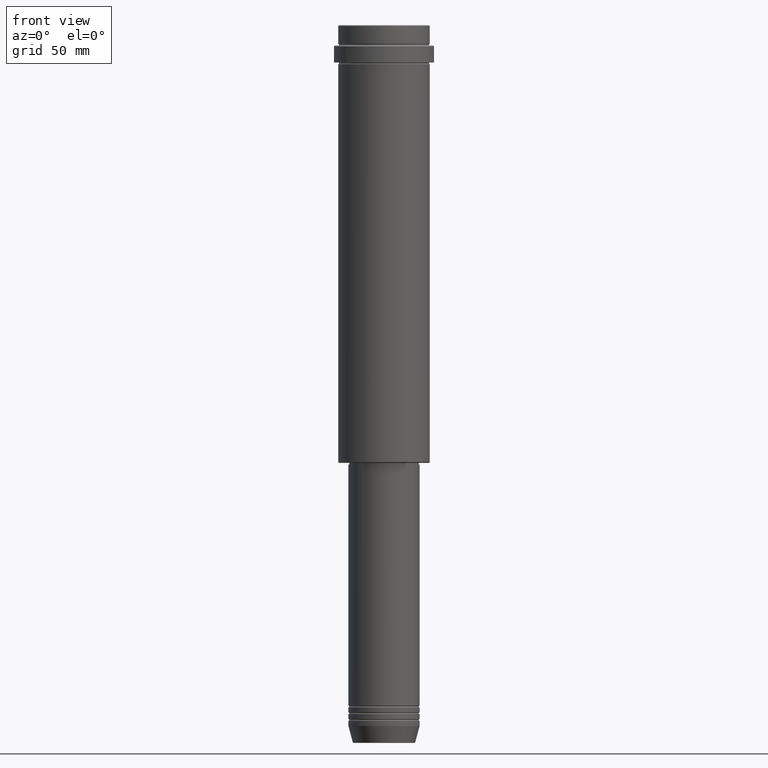
[diagram: clean part render]
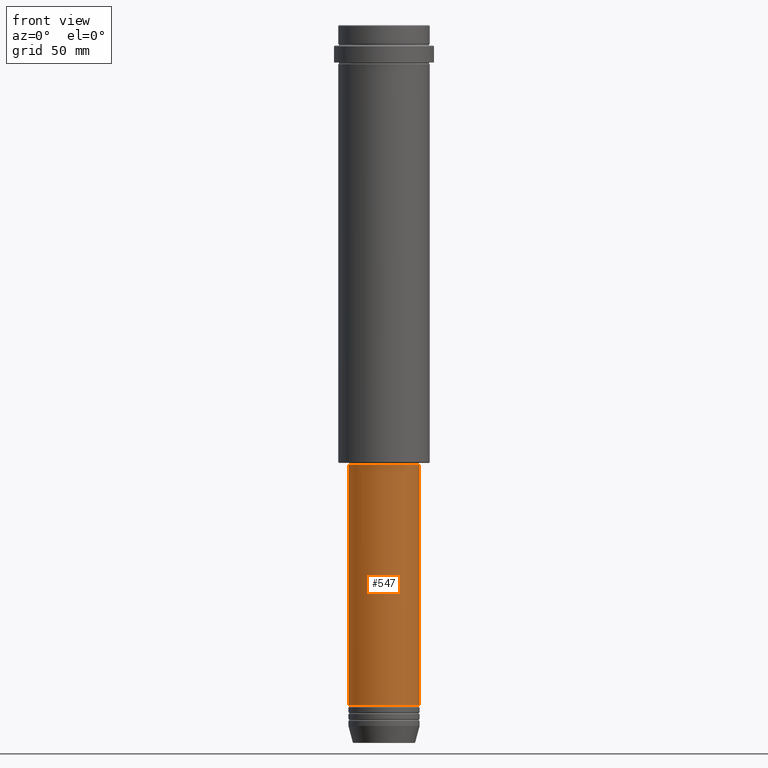
[diagram: same view with one face highlighted and labeled with its STEP entity id]
A machine part, front view. The second image highlights one B-rep face of the part: STEP entity #547.
In plain terms, the highlighted cylindrical surface (edge-blend (fillet) strip) has radius 21 mm, axis along (-0, -0, 1).
Its self-contained STEP definition (entity closure, byte-faithful):
#12 = EDGE_CURVE ( 'NONE', #1357, #1034, #69, .T. ) ;
#69 = LINE ( 'NONE', #1376, #1143 ) ;
#72 = CARTESIAN_POINT ( 'NONE',  ( 21.00000000000000000, 0.000000000000000000, -259.0000000000000000 ) ) ;
#91 = CIRCLE ( 'NONE', #756, 21.00000000000000000 ) ;
#140 = CARTESIAN_POINT ( 'NONE',  ( 21.00000000000000000, 0.000000000000000000, -400.9999999999998295 ) ) ;
#214 = ORIENTED_EDGE ( 'NONE', *, *, #12, .F. ) ;
#304 = DIRECTION ( 'NONE',  ( 1.000000000000000000, 0.000000000000000000, 0.000000000000000000 ) ) ;
#311 = DIRECTION ( 'NONE',  ( -0.000000000000000000, -0.000000000000000000, 1.000000000000000000 ) ) ;
#326 = DIRECTION ( 'NONE',  ( -0.000000000000000000, -0.000000000000000000, 1.000000000000000000 ) ) ;
#332 = VERTEX_POINT ( 'NONE', #72 ) ;
#431 = FACE_OUTER_BOUND ( 'NONE', #993, .T. ) ;
#435 = CARTESIAN_POINT ( 'NONE',  ( 0.000000000000000000, 0.000000000000000000, 0.000000000000000000 ) ) ;
#501 = DIRECTION ( 'NONE',  ( -0.000000000000000000, -0.000000000000000000, 1.000000000000000000 ) ) ;
#514 = AXIS2_PLACEMENT_3D ( 'NONE', #1171, #311, #304 ) ;
#547 = ADVANCED_FACE ( 'NONE', ( #431 ), #1005, .T. ) ;
#595 = DIRECTION ( 'NONE',  ( -0.000000000000000000, -0.000000000000000000, 1.000000000000000000 ) ) ;
#674 = LINE ( 'NONE', #783, #1293 ) ;
#697 = AXIS2_PLACEMENT_3D ( 'NONE', #435, #764, #772 ) ;
#706 = EDGE_CURVE ( 'NONE', #1034, #332, #91, .T. ) ;
#756 = AXIS2_PLACEMENT_3D ( 'NONE', #1342, #326, #1099 ) ;
#764 = DIRECTION ( 'NONE',  ( -0.000000000000000000, -0.000000000000000000, 1.000000000000000000 ) ) ;
#768 = ORIENTED_EDGE ( 'NONE', *, *, #989, .T. ) ;
#770 = EDGE_CURVE ( 'NONE', #1325, #332, #674, .T. ) ;
#772 = DIRECTION ( 'NONE',  ( 1.000000000000000000, 0.000000000000000000, 0.000000000000000000 ) ) ;
#783 = CARTESIAN_POINT ( 'NONE',  ( 21.00000000000000000, 0.000000000000000000, 0.000000000000000000 ) ) ;
#989 = EDGE_CURVE ( 'NONE', #1357, #1325, #1139, .T. ) ;
#993 = EDGE_LOOP ( 'NONE', ( #214, #768, #1125, #1103 ) ) ;
#1005 = CYLINDRICAL_SURFACE ( 'NONE', #697, 21.00000000000000000 ) ;
#1034 = VERTEX_POINT ( 'NONE', #1064 ) ;
#1064 = CARTESIAN_POINT ( 'NONE',  ( -21.00000000000000000, 2.571758278209441661E-15, -259.0000000000000000 ) ) ;
#1099 = DIRECTION ( 'NONE',  ( 1.000000000000000000, 0.000000000000000000, 0.000000000000000000 ) ) ;
#1103 = ORIENTED_EDGE ( 'NONE', *, *, #706, .F. ) ;
#1125 = ORIENTED_EDGE ( 'NONE', *, *, #770, .T. ) ;
#1139 = CIRCLE ( 'NONE', #514, 21.00000000000000000 ) ;
#1143 = VECTOR ( 'NONE', #501, 1000.000000000000000 ) ;
#1171 = CARTESIAN_POINT ( 'NONE',  ( 0.000000000000000000, 0.000000000000000000, -400.9999999999998295 ) ) ;
#1293 = VECTOR ( 'NONE', #595, 1000.000000000000000 ) ;
#1294 = CARTESIAN_POINT ( 'NONE',  ( -21.00000000000000000, 2.571758278209441661E-15, -400.9999999999998295 ) ) ;
#1325 = VERTEX_POINT ( 'NONE', #140 ) ;
#1342 = CARTESIAN_POINT ( 'NONE',  ( 0.000000000000000000, 0.000000000000000000, -259.0000000000000000 ) ) ;
#1357 = VERTEX_POINT ( 'NONE', #1294 ) ;
#1376 = CARTESIAN_POINT ( 'NONE',  ( -21.00000000000000000, 2.571758278209441661E-15, 0.000000000000000000 ) ) ;